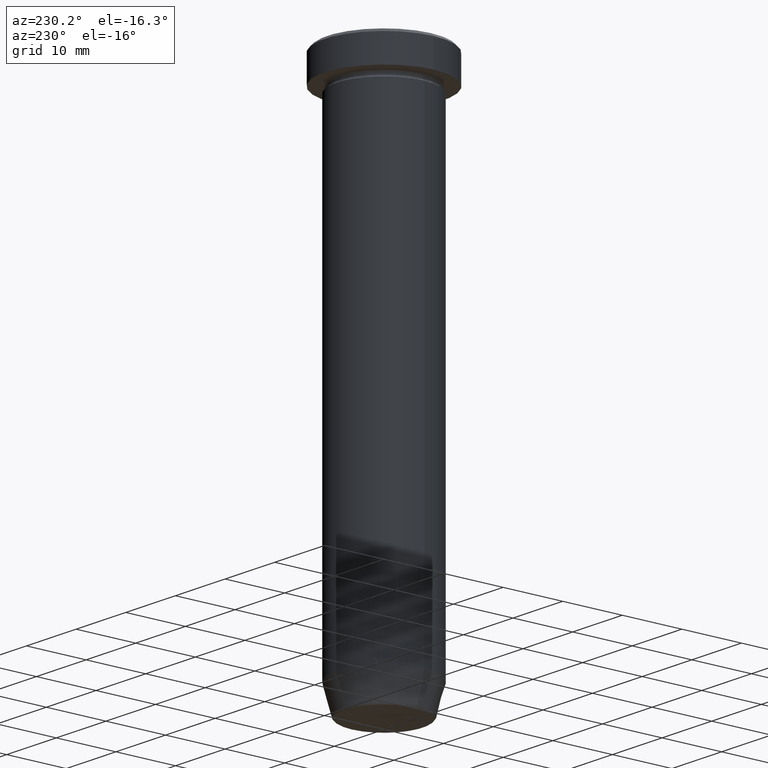
[diagram: clean part render]
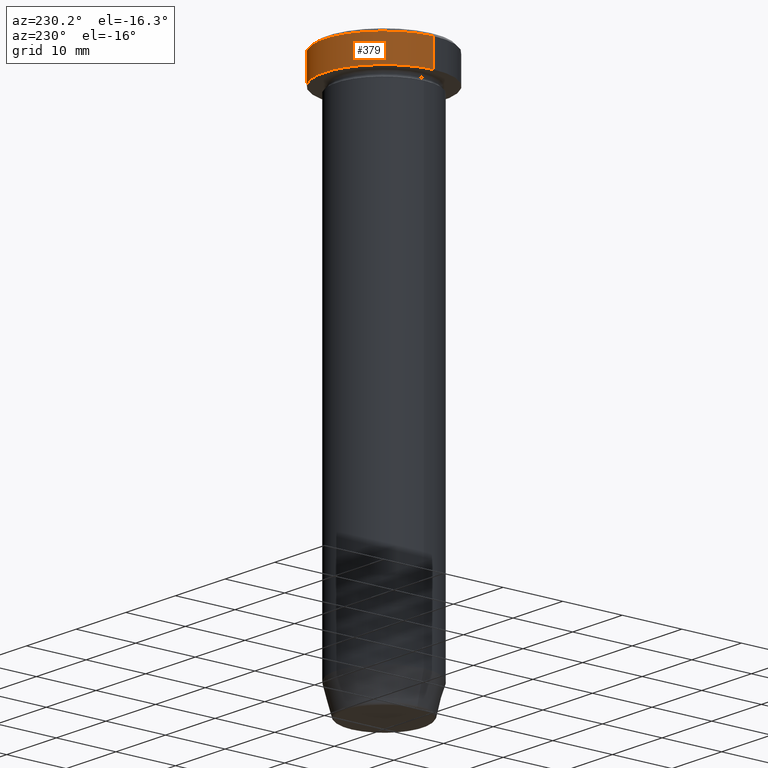
[diagram: same view with one face highlighted and labeled with its STEP entity id]
A machine part, auxiliary view. The second image highlights one B-rep face of the part: STEP entity #379.
In plain terms, the highlighted cylindrical surface (partial cylindrical patch) has radius 10 mm, axis along (-0, -0, 1).
Its self-contained STEP definition (entity closure, byte-faithful):
#32 = DIRECTION ( 'NONE',  ( -0.000000000000000000, -0.000000000000000000, 1.000000000000000000 ) ) ;
#64 = ORIENTED_EDGE ( 'NONE', *, *, #590, .F. ) ;
#69 = VERTEX_POINT ( 'NONE', #315 ) ;
#76 = DIRECTION ( 'NONE',  ( 1.000000000000000000, 0.000000000000000000, 0.000000000000000000 ) ) ;
#93 = DIRECTION ( 'NONE',  ( -0.000000000000000000, -0.000000000000000000, 1.000000000000000000 ) ) ;
#126 = DIRECTION ( 'NONE',  ( -0.000000000000000000, -0.000000000000000000, 1.000000000000000000 ) ) ;
#130 = VERTEX_POINT ( 'NONE', #596 ) ;
#133 = CARTESIAN_POINT ( 'NONE',  ( -10.00000000000000000, 1.224646799147353256E-15, -5.000000000000000000 ) ) ;
#140 = VERTEX_POINT ( 'NONE', #133 ) ;
#151 = EDGE_CURVE ( 'NONE', #130, #69, #385, .T. ) ;
#164 = ORIENTED_EDGE ( 'NONE', *, *, #538, .T. ) ;
#168 = VECTOR ( 'NONE', #126, 1000.000000000000000 ) ;
#197 = VECTOR ( 'NONE', #93, 1000.000000000000000 ) ;
#203 = CARTESIAN_POINT ( 'NONE',  ( 10.00000000000000000, 0.000000000000000000, -5.000000000000000000 ) ) ;
#242 = CARTESIAN_POINT ( 'NONE',  ( -10.00000000000000000, 1.224646799147353256E-15, 0.000000000000000000 ) ) ;
#245 = EDGE_CURVE ( 'NONE', #140, #130, #381, .T. ) ;
#254 = ORIENTED_EDGE ( 'NONE', *, *, #245, .T. ) ;
#278 = CARTESIAN_POINT ( 'NONE',  ( 0.000000000000000000, 0.000000000000000000, -0.5000000000000056621 ) ) ;
#286 = CIRCLE ( 'NONE', #595, 10.00000000000000000 ) ;
#289 = DIRECTION ( 'NONE',  ( 1.000000000000000000, 0.000000000000000000, 0.000000000000000000 ) ) ;
#297 = CYLINDRICAL_SURFACE ( 'NONE', #343, 10.00000000000000000 ) ;
#315 = CARTESIAN_POINT ( 'NONE',  ( 10.00000000000000000, 0.000000000000000000, -0.5000000000000056621 ) ) ;
#319 = DIRECTION ( 'NONE',  ( 0.000000000000000000, 0.000000000000000000, -1.000000000000000000 ) ) ;
#343 = AXIS2_PLACEMENT_3D ( 'NONE', #569, #521, #76 ) ;
#365 = CARTESIAN_POINT ( 'NONE',  ( 0.000000000000000000, 0.000000000000000000, -5.000000000000000000 ) ) ;
#379 = ADVANCED_FACE ( 'NONE', ( #567 ), #297, .T. ) ;
#381 = LINE ( 'NONE', #242, #197 ) ;
#385 = CIRCLE ( 'NONE', #500, 10.00000000000000000 ) ;
#389 = EDGE_LOOP ( 'NONE', ( #164, #254, #438, #64 ) ) ;
#404 = LINE ( 'NONE', #541, #168 ) ;
#424 = VERTEX_POINT ( 'NONE', #203 ) ;
#438 = ORIENTED_EDGE ( 'NONE', *, *, #151, .T. ) ;
#500 = AXIS2_PLACEMENT_3D ( 'NONE', #278, #319, #289 ) ;
#502 = DIRECTION ( 'NONE',  ( 1.000000000000000000, 0.000000000000000000, 0.000000000000000000 ) ) ;
#521 = DIRECTION ( 'NONE',  ( -0.000000000000000000, -0.000000000000000000, 1.000000000000000000 ) ) ;
#538 = EDGE_CURVE ( 'NONE', #424, #140, #286, .T. ) ;
#541 = CARTESIAN_POINT ( 'NONE',  ( 10.00000000000000000, 0.000000000000000000, 0.000000000000000000 ) ) ;
#567 = FACE_OUTER_BOUND ( 'NONE', #389, .T. ) ;
#569 = CARTESIAN_POINT ( 'NONE',  ( 0.000000000000000000, 0.000000000000000000, 0.000000000000000000 ) ) ;
#590 = EDGE_CURVE ( 'NONE', #424, #69, #404, .T. ) ;
#595 = AXIS2_PLACEMENT_3D ( 'NONE', #365, #32, #502 ) ;
#596 = CARTESIAN_POINT ( 'NONE',  ( -10.00000000000000000, 1.224646799147353256E-15, -0.5000000000000056621 ) ) ;